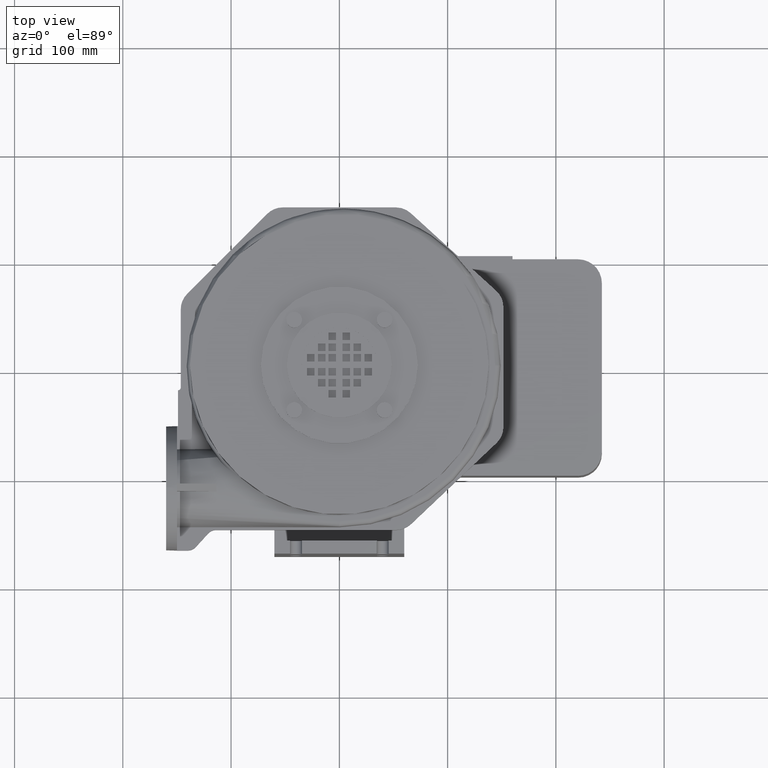
[diagram: clean part render]
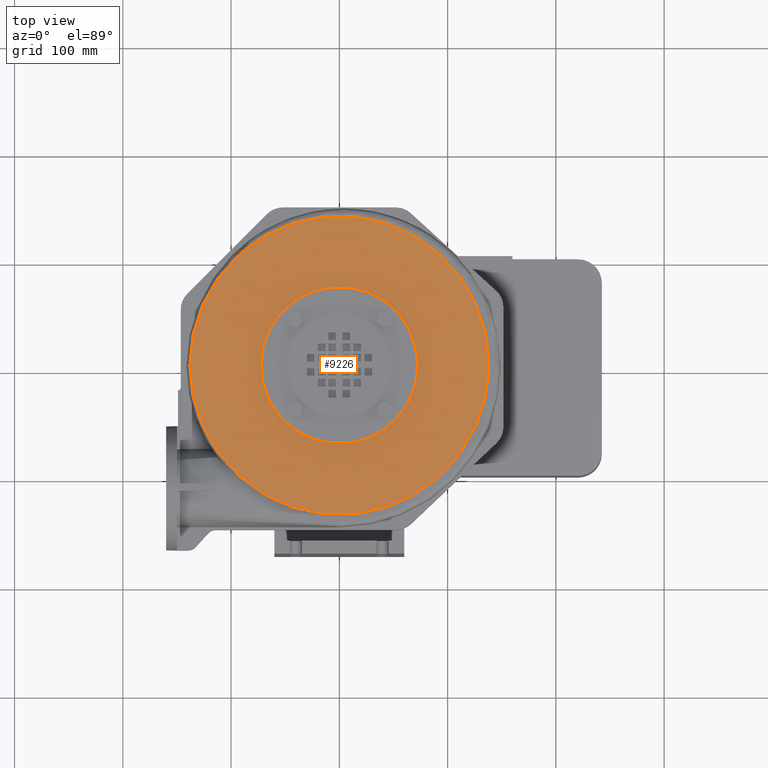
[diagram: same view with one face highlighted and labeled with its STEP entity id]
A machine part, top view. The second image highlights one B-rep face of the part: STEP entity #9226.
In plain terms, the highlighted planar face has unit normal (0, 0, -1).
Its self-contained STEP definition (entity closure, byte-faithful):
#876=CARTESIAN_POINT('',(-72.500000000000000,8.878396E-015,48.500000000000007));
#877=VERTEX_POINT('',#876);
#886=CARTESIAN_POINT('',(72.500000000000000,8.878396E-015,48.500000000000007));
#887=VERTEX_POINT('',#886);
#888=CARTESIAN_POINT('',(0.0,0.0,48.500000000000007));
#889=DIRECTION('',(0.0,0.0,-1.0));
#890=DIRECTION('',(-1.0,0.0,0.0));
#891=AXIS2_PLACEMENT_3D('',#888,#889,#890);
#892=CIRCLE('',#891,72.500000000000000);
#893=EDGE_CURVE('',#887,#877,#892,.T.);
#920=CARTESIAN_POINT('',(-138.0,1.689957E-014,48.500000000000000));
#921=VERTEX_POINT('',#920);
#979=CARTESIAN_POINT('',(138.0,1.689957E-014,48.500000000000007));
#980=VERTEX_POINT('',#979);
#987=CARTESIAN_POINT('',(0.0,0.0,48.500000000000007));
#988=DIRECTION('',(0.0,0.0,-1.0));
#989=DIRECTION('',(-1.0,0.0,0.0));
#990=AXIS2_PLACEMENT_3D('',#987,#988,#989);
#991=CIRCLE('',#990,138.0);
#992=EDGE_CURVE('',#980,#921,#991,.T.);
#9182=CARTESIAN_POINT('',(0.0,0.0,48.500000000000007));
#9183=DIRECTION('',(0.0,0.0,-1.0));
#9184=DIRECTION('',(-1.0,0.0,0.0));
#9185=AXIS2_PLACEMENT_3D('',#9182,#9183,#9184);
#9186=CIRCLE('',#9185,138.0);
#9187=EDGE_CURVE('',#921,#980,#9186,.T.);
#9207=CARTESIAN_POINT('',(0.0,0.0,48.500000000000007));
#9208=DIRECTION('',(0.0,0.0,-1.0));
#9209=DIRECTION('',(-1.0,0.0,0.0));
#9210=AXIS2_PLACEMENT_3D('',#9207,#9208,#9209);
#9211=PLANE('',#9210);
#9212=ORIENTED_EDGE('',*,*,#992,.F.);
#9213=ORIENTED_EDGE('',*,*,#9187,.F.);
#9214=EDGE_LOOP('',(#9212,#9213));
#9215=FACE_OUTER_BOUND('',#9214,.T.);
#9216=ORIENTED_EDGE('',*,*,#893,.T.);
#9217=CARTESIAN_POINT('',(0.0,0.0,48.500000000000007));
#9218=DIRECTION('',(0.0,0.0,-1.0));
#9219=DIRECTION('',(-1.0,0.0,0.0));
#9220=AXIS2_PLACEMENT_3D('',#9217,#9218,#9219);
#9221=CIRCLE('',#9220,72.500000000000000);
#9222=EDGE_CURVE('',#877,#887,#9221,.T.);
#9223=ORIENTED_EDGE('',*,*,#9222,.T.);
#9224=EDGE_LOOP('',(#9216,#9223));
#9225=FACE_BOUND('',#9224,.T.);
#9226=ADVANCED_FACE('',(#9215,#9225),#9211,.F.);